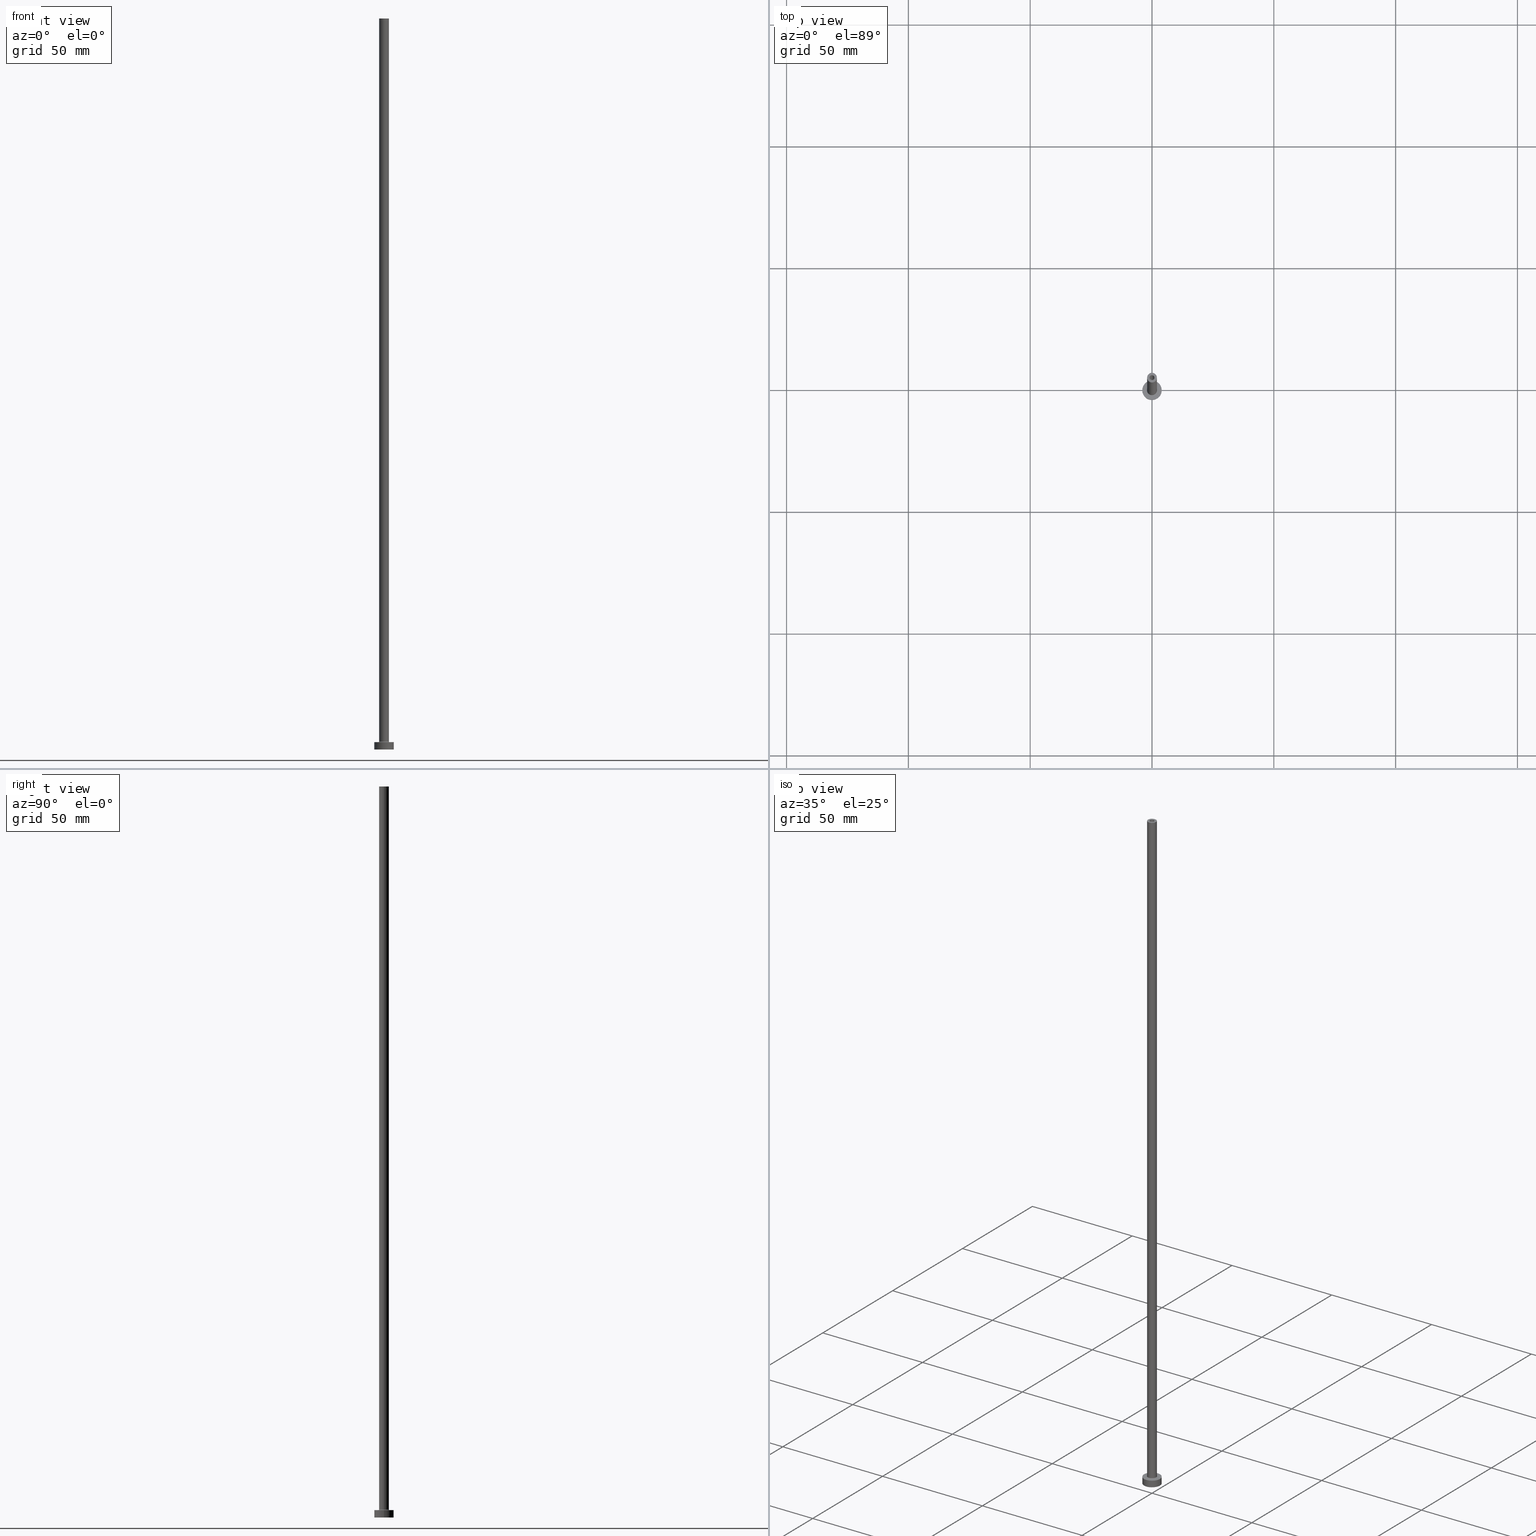
[diagram: canonical four-view strip — front | top / right | iso, engineering-drawing reading convention]
A machine part, canonical four-view strip (front | top / right | iso — engineering-drawing reading convention). The complete STEP part file that produces these views, byte-faithful:
ISO-10303-21;
HEADER;
FILE_DESCRIPTION (( 'STEP AP203' ),
    '1' );
FILE_NAME ('3793.STEP',
    '2023-02-13T18:16:34',
    ( '' ),
    ( '' ),
    'SwSTEP 2.0',
    'SolidWorks 2019',
    '' );
FILE_SCHEMA (( 'CONFIG_CONTROL_DESIGN' ));
ENDSEC;

DATA;
#1 = DIRECTION ( 'NONE',  ( 1.000000000000000000, 0.000000000000000000, -0.000000000000000000 ) ) ;
#2 = PRODUCT ( '3793', '3793', '', ( #319 ) ) ;
#3 = APPLICATION_PROTOCOL_DEFINITION ( 'international standard', 'config_control_design', 1994, #411 ) ;
#4 = CARTESIAN_POINT ( 'NONE',  ( -4.000000000000000000, 0.000000000000000000, 0.000000000000000000 ) ) ;
#5 = DIRECTION ( 'NONE',  ( 1.000000000000000000, 0.000000000000000000, 0.000000000000000000 ) ) ;
#6 = ORIENTED_EDGE ( 'NONE', *, *, #243, .T. ) ;
#7 = DATE_AND_TIME ( #323, #449 ) ;
#8 = CYLINDRICAL_SURFACE ( 'NONE', #114, 2.000000000000000000 ) ;
#9 = ADVANCED_FACE ( 'NONE', ( #197 ), #260, .F. ) ;
#10 = CARTESIAN_POINT ( 'NONE',  ( 1.149999999999999911, 1.408343819019456028E-16, 0.000000000000000000 ) ) ;
#11 = VERTEX_POINT ( 'NONE', #401 ) ;
#12 = DIRECTION ( 'NONE',  ( 0.000000000000000000, 0.000000000000000000, -1.000000000000000000 ) ) ;
#13 = ORIENTED_EDGE ( 'NONE', *, *, #121, .T. ) ;
#14 = APPROVAL ( #138, 'NEUR�EN�' ) ;
#15 = CARTESIAN_POINT ( 'NONE',  ( 0.000000000000000000, 0.000000000000000000, 3.000000000000000000 ) ) ;
#16 = FACE_OUTER_BOUND ( 'NONE', #297, .T. ) ;
#17 = AXIS2_PLACEMENT_3D ( 'NONE', #372, #445, #228 ) ;
#18 = ORIENTED_EDGE ( 'NONE', *, *, #376, .T. ) ;
#19 = CARTESIAN_POINT ( 'NONE',  ( -4.000000000000000000, 0.000000000000000000, 3.000000000000000000 ) ) ;
#20 = FACE_OUTER_BOUND ( 'NONE', #119, .T. ) ;
#21 = DIRECTION ( 'NONE',  ( 0.000000000000000000, 0.000000000000000000, 1.000000000000000000 ) ) ;
#22 = FACE_BOUND ( 'NONE', #328, .T. ) ;
#23 = DIRECTION ( 'NONE',  ( 0.000000000000000000, 0.000000000000000000, 1.000000000000000000 ) ) ;
#24 = AXIS2_PLACEMENT_3D ( 'NONE', #459, #347, #5 ) ;
#25 = CYLINDRICAL_SURFACE ( 'NONE', #17, 4.000000000000000000 ) ;
#26 = VERTEX_POINT ( 'NONE', #325 ) ;
#27 = VERTEX_POINT ( 'NONE', #10 ) ;
#28 = APPROVAL_ROLE ( '' ) ;
#29 = EDGE_CURVE ( 'NONE', #83, #434, #172, .T. ) ;
#30 = ORIENTED_EDGE ( 'NONE', *, *, #76, .T. ) ;
#31 = PRODUCT_DEFINITION_SHAPE ( 'NONE', 'NONE',  #175 ) ;
#32 = CIRCLE ( 'NONE', #86, 2.000000000000000000 ) ;
#33 = LOCAL_TIME ( 19, 16, 34.00000000000000000, #51 ) ;
#34 = DIRECTION ( 'NONE',  ( 0.000000000000000000, 0.000000000000000000, -1.000000000000000000 ) ) ;
#35 = CARTESIAN_POINT ( 'NONE',  ( 0.000000000000000000, 0.000000000000000000, 300.0000000000000000 ) ) ;
#36 = DIRECTION ( 'NONE',  ( 1.000000000000000000, 0.000000000000000000, 0.000000000000000000 ) ) ;
#37 = AXIS2_PLACEMENT_3D ( 'NONE', #285, #322, #426 ) ;
#38 = VERTEX_POINT ( 'NONE', #112 ) ;
#39 = PERSON_AND_ORGANIZATION_ROLE ( 'creator' ) ;
#40 = ORIENTED_EDGE ( 'NONE', *, *, #404, .T. ) ;
#41 = ADVANCED_FACE ( 'NONE', ( #16 ), #432, .T. ) ;
#42 = ORIENTED_EDGE ( 'NONE', *, *, #95, .T. ) ;
#43 = CARTESIAN_POINT ( 'NONE',  ( -2.000000000000000000, 0.000000000000000000, 3.300000000000025135 ) ) ;
#44 = ORIENTED_EDGE ( 'NONE', *, *, #345, .T. ) ;
#45 = ADVANCED_FACE ( 'NONE', ( #81 ), #48, .F. ) ;
#46 = ORIENTED_EDGE ( 'NONE', *, *, #124, .T. ) ;
#47 = VERTEX_POINT ( 'NONE', #185 ) ;
#48 = TOROIDAL_SURFACE ( 'NONE', #69, 2.299999999999999822, 0.2999999999999999889 ) ;
#49 = SECURITY_CLASSIFICATION ( '', '', #230 ) ;
#50 = ORIENTED_EDGE ( 'NONE', *, *, #232, .T. ) ;
#51 = COORDINATED_UNIVERSAL_TIME_OFFSET ( 1, 0, .AHEAD. ) ;
#52 = CC_DESIGN_DATE_AND_TIME_ASSIGNMENT ( #315, #137, ( #49 ) ) ;
#53 = COORDINATED_UNIVERSAL_TIME_OFFSET ( 1, 0, .AHEAD. ) ;
#54 = CARTESIAN_POINT ( 'NONE',  ( 0.000000000000000000, 0.000000000000000000, 3.000000000000000000 ) ) ;
#55 = DIRECTION ( 'NONE',  ( 1.000000000000000000, 0.000000000000000000, -0.000000000000000000 ) ) ;
#56 = ORIENTED_EDGE ( 'NONE', *, *, #420, .T. ) ;
#57 = ADVANCED_BREP_SHAPE_REPRESENTATION ( '3793', ( #393, #97 ), #335 ) ;
#58 = ORIENTED_EDGE ( 'NONE', *, *, #108, .T. ) ;
#59 = PERSON_AND_ORGANIZATION_ROLE ( 'design_supplier' ) ;
#60 = DIRECTION ( 'NONE',  ( 1.000000000000000000, 0.000000000000000000, 0.000000000000000000 ) ) ;
#61 = CC_DESIGN_DATE_AND_TIME_ASSIGNMENT ( #7, #140, ( #175 ) ) ;
#62 = ORIENTED_EDGE ( 'NONE', *, *, #431, .T. ) ;
#63 = AXIS2_PLACEMENT_3D ( 'NONE', #333, #410, #191 ) ;
#64 = PLANE ( 'NONE',  #122 ) ;
#65 = EDGE_CURVE ( 'NONE', #47, #267, #179, .T. ) ;
#66 = DIRECTION ( 'NONE',  ( 0.000000000000000000, 0.000000000000000000, 1.000000000000000000 ) ) ;
#67 = COORDINATED_UNIVERSAL_TIME_OFFSET ( 1, 0, .AHEAD. ) ;
#68 = DIRECTION ( 'NONE',  ( 0.000000000000000000, 0.000000000000000000, 1.000000000000000000 ) ) ;
#69 = AXIS2_PLACEMENT_3D ( 'NONE', #151, #68, #351 ) ;
#70 = DIRECTION ( 'NONE',  ( 1.000000000000000000, 0.000000000000000000, -0.000000000000000000 ) ) ;
#71 = DIRECTION ( 'NONE',  ( -0.000000000000000000, -0.000000000000000000, -1.000000000000000000 ) ) ;
#72 = ADVANCED_FACE ( 'NONE', ( #443 ), #252, .F. ) ;
#73 = CARTESIAN_POINT ( 'NONE',  ( -1.149999999999999911, 0.000000000000000000, 265.0000000000000000 ) ) ;
#74 = ORIENTED_EDGE ( 'NONE', *, *, #376, .F. ) ;
#75 = DIRECTION ( 'NONE',  ( -1.000000000000000000, 0.000000000000000000, 0.000000000000000000 ) ) ;
#76 = EDGE_CURVE ( 'NONE', #292, #396, #289, .T. ) ;
#77 = CIRCLE ( 'NONE', #109, 2.000000000000000000 ) ;
#78 = EDGE_LOOP ( 'NONE', ( #418, #40 ) ) ;
#79 = EDGE_LOOP ( 'NONE', ( #186, #18, #392, #178 ) ) ;
#80 = CARTESIAN_POINT ( 'NONE',  ( -1.000000000000000000, 0.000000000000000000, 265.0000000000000000 ) ) ;
#81 = FACE_OUTER_BOUND ( 'NONE', #117, .T. ) ;
#82 =( NAMED_UNIT ( * ) SI_UNIT ( $, .STERADIAN. ) SOLID_ANGLE_UNIT ( ) );
#83 = VERTEX_POINT ( 'NONE', #43 ) ;
#84 = ORIENTED_EDGE ( 'NONE', *, *, #243, .F. ) ;
#85 = CYLINDRICAL_SURFACE ( 'NONE', #352, 1.000000000000000000 ) ;
#86 = AXIS2_PLACEMENT_3D ( 'NONE', #266, #224, #220 ) ;
#87 = ORIENTED_EDGE ( 'NONE', *, *, #155, .F. ) ;
#88 = EDGE_CURVE ( 'NONE', #396, #384, #368, .T. ) ;
#89 = PLANE ( 'NONE',  #226 ) ;
#90 = ORIENTED_EDGE ( 'NONE', *, *, #337, .F. ) ;
#91 = CARTESIAN_POINT ( 'NONE',  ( 0.000000000000000000, 0.000000000000000000, 0.000000000000000000 ) ) ;
#92 = DIRECTION ( 'NONE',  ( -0.000000000000000000, -0.000000000000000000, -1.000000000000000000 ) ) ;
#93 = DIRECTION ( 'NONE',  ( 1.000000000000000000, 0.000000000000000000, 0.000000000000000000 ) ) ;
#94 = ORIENTED_EDGE ( 'NONE', *, *, #29, .T. ) ;
#95 = EDGE_CURVE ( 'NONE', #384, #396, #427, .T. ) ;
#96 = CIRCLE ( 'NONE', #262, 2.299999999999999822 ) ;
#97 = AXIS2_PLACEMENT_3D ( 'NONE', #144, #270, #135 ) ;
#98 = EDGE_LOOP ( 'NONE', ( #439, #153 ) ) ;
#99 = CARTESIAN_POINT ( 'NONE',  ( 0.000000000000000000, 0.000000000000000000, 3.000000000000000000 ) ) ;
#100 = CARTESIAN_POINT ( 'NONE',  ( 0.000000000000000000, 0.000000000000000000, 268.2526911934581904 ) ) ;
#101 = DIRECTION ( 'NONE',  ( 0.000000000000000000, 0.000000000000000000, 1.000000000000000000 ) ) ;
#102 = DESIGN_CONTEXT ( 'detailed design', #411, 'design' ) ;
#103 = APPLICATION_PROTOCOL_DEFINITION ( 'international standard', 'config_control_design', 1994, #192 ) ;
#104 = EDGE_CURVE ( 'NONE', #47, #125, #217, .T. ) ;
#105 = PERSON_AND_ORGANIZATION ( #148, #438 ) ;
#106 = CARTESIAN_POINT ( 'NONE',  ( 2.299999999999999822, 0.000000000000000000, 3.000000000000012434 ) ) ;
#107 = PERSON_AND_ORGANIZATION ( #148, #438 ) ;
#108 = EDGE_CURVE ( 'NONE', #448, #27, #414, .T. ) ;
#109 = AXIS2_PLACEMENT_3D ( 'NONE', #382, #101, #93 ) ;
#110 = FACE_OUTER_BOUND ( 'NONE', #375, .T. ) ;
#111 = FACE_OUTER_BOUND ( 'NONE', #415, .T. ) ;
#112 = CARTESIAN_POINT ( 'NONE',  ( 4.000000000000000000, 4.898587196589412829E-16, 0.000000000000000000 ) ) ;
#113 = DIRECTION ( 'NONE',  ( 1.000000000000000000, 0.000000000000000000, 0.000000000000000000 ) ) ;
#114 = AXIS2_PLACEMENT_3D ( 'NONE', #233, #383, #196 ) ;
#115 = CC_DESIGN_SECURITY_CLASSIFICATION ( #49, ( #152 ) ) ;
#116 = ORIENTED_EDGE ( 'NONE', *, *, #431, .F. ) ;
#117 = EDGE_LOOP ( 'NONE', ( #231, #167, #209, #90 ) ) ;
#118 = APPROVAL_STATUS ( 'not_yet_approved' ) ;
#119 = EDGE_LOOP ( 'NONE', ( #180, #253, #46, #454 ) ) ;
#120 = DIRECTION ( 'NONE',  ( -0.000000000000000000, -0.000000000000000000, -1.000000000000000000 ) ) ;
#121 = EDGE_CURVE ( 'NONE', #11, #434, #314, .T. ) ;
#122 = AXIS2_PLACEMENT_3D ( 'NONE', #35, #66, #70 ) ;
#123 = CIRCLE ( 'NONE', #37, 1.149999999999999911 ) ;
#124 = EDGE_CURVE ( 'NONE', #38, #267, #342, .T. ) ;
#125 = VERTEX_POINT ( 'NONE', #385 ) ;
#126 = DIRECTION ( 'NONE',  ( 0.000000000000000000, 0.000000000000000000, 1.000000000000000000 ) ) ;
#127 = CIRCLE ( 'NONE', #437, 0.2999999999999999334 ) ;
#128 = DIRECTION ( 'NONE',  ( 1.000000000000000000, 0.000000000000000000, 0.000000000000000000 ) ) ;
#129 = APPROVAL_DATE_TIME ( #236, #276 ) ;
#130 = FACE_OUTER_BOUND ( 'NONE', #183, .T. ) ;
#131 = CC_DESIGN_PERSON_AND_ORGANIZATION_ASSIGNMENT ( #413, #374, ( #49 ) ) ;
#132 = CIRCLE ( 'NONE', #282, 0.2999999999999999334 ) ;
#133 = CC_DESIGN_APPROVAL ( #388, ( #152 ) ) ;
#134 = CARTESIAN_POINT ( 'NONE',  ( 0.000000000000000000, 0.000000000000000000, 300.0000000000000000 ) ) ;
#135 = DIRECTION ( 'NONE',  ( 1.000000000000000000, 0.000000000000000000, 0.000000000000000000 ) ) ;
#136 = ADVANCED_FACE ( 'NONE', ( #130 ), #280, .F. ) ;
#137 = DATE_TIME_ROLE ( 'classification_date' ) ;
#138 = APPROVAL_STATUS ( 'not_yet_approved' ) ;
#139 = CARTESIAN_POINT ( 'NONE',  ( -2.000000000000000000, 0.000000000000000000, 300.0000000000000000 ) ) ;
#140 = DATE_TIME_ROLE ( 'creation_date' ) ;
#141 = AXIS2_PLACEMENT_3D ( 'NONE', #99, #235, #128 ) ;
#142 = DIRECTION ( 'NONE',  ( 0.000000000000000000, 0.000000000000000000, -1.000000000000000000 ) ) ;
#143 = DIRECTION ( 'NONE',  ( 0.000000000000000000, 0.000000000000000000, 1.000000000000000000 ) ) ;
#144 = CARTESIAN_POINT ( 'NONE',  ( 0.000000000000000000, 0.000000000000000000, 0.000000000000000000 ) ) ;
#145 = DIRECTION ( 'NONE',  ( 1.000000000000000000, 0.000000000000000000, 0.000000000000000000 ) ) ;
#146 = ORIENTED_EDGE ( 'NONE', *, *, #256, .T. ) ;
#147 = CLOSED_SHELL ( 'NONE', ( #457, #9, #45, #205, #363, #41, #170, #321, #284, #216, #72, #136, #265, #355 ) ) ;
#148 = PERSON ( 'NEUR�EN�', 'NEUR�EN�', 'NEUR�EN�', ('NEUR�EN�'), ('NEUR�EN�'), ('NEUR�EN�') ) ;
#149 = ORIENTED_EDGE ( 'NONE', *, *, #121, .F. ) ;
#150 = DIRECTION ( 'NONE',  ( 1.000000000000000000, 0.000000000000000000, 0.000000000000000000 ) ) ;
#151 = CARTESIAN_POINT ( 'NONE',  ( 0.000000000000000000, 0.000000000000000000, 3.300000000000025135 ) ) ;
#152 = PRODUCT_DEFINITION_FORMATION_WITH_SPECIFIED_SOURCE ( 'LIBOVOLN�', '', #2, .NOT_KNOWN. ) ;
#153 = ORIENTED_EDGE ( 'NONE', *, *, #187, .F. ) ;
#154 = ORIENTED_EDGE ( 'NONE', *, *, #425, .F. ) ;
#155 = EDGE_CURVE ( 'NONE', #267, #38, #361, .T. ) ;
#156 = AXIS2_PLACEMENT_3D ( 'NONE', #398, #258, #75 ) ;
#157 = DIRECTION ( 'NONE',  ( 1.000000000000000000, 0.000000000000000000, 0.000000000000000000 ) ) ;
#158 = CIRCLE ( 'NONE', #329, 1.149999999999999911 ) ;
#159 = CALENDAR_DATE ( 2023, 13, 2 ) ;
#160 = CARTESIAN_POINT ( 'NONE',  ( 1.149999999999999911, 1.408343819019456028E-16, 268.2526911934581904 ) ) ;
#161 = LINE ( 'NONE', #453, #210 ) ;
#162 = ORIENTED_EDGE ( 'NONE', *, *, #155, .T. ) ;
#163 = DIRECTION ( 'NONE',  ( 0.000000000000000000, 0.000000000000000000, 1.000000000000000000 ) ) ;
#164 = AXIS2_PLACEMENT_3D ( 'NONE', #435, #277, #157 ) ;
#165 = CARTESIAN_POINT ( 'NONE',  ( 1.149999999999999911, 1.408343819019456028E-16, 265.0000000000000000 ) ) ;
#166 = CALENDAR_DATE ( 2023, 13, 2 ) ;
#167 = ORIENTED_EDGE ( 'NONE', *, *, #222, .T. ) ;
#168 = AXIS2_PLACEMENT_3D ( 'NONE', #100, #244, #387 ) ;
#169 = DIRECTION ( 'NONE',  ( -0.000000000000000000, -0.000000000000000000, -1.000000000000000000 ) ) ;
#170 = ADVANCED_FACE ( 'NONE', ( #22, #300 ), #89, .T. ) ;
#171 = FACE_OUTER_BOUND ( 'NONE', #381, .T. ) ;
#172 = CIRCLE ( 'NONE', #274, 2.000000000000000000 ) ;
#173 = CARTESIAN_POINT ( 'NONE',  ( 0.000000000000000000, 0.000000000000000000, 265.0000000000000000 ) ) ;
#174 =( LENGTH_UNIT ( ) NAMED_UNIT ( * ) SI_UNIT ( .MILLI., .METRE. ) );
#175 = PRODUCT_DEFINITION ( 'NEZN�M�', '', #152, #102 ) ;
#176 = CARTESIAN_POINT ( 'NONE',  ( 0.000000000000000000, 0.000000000000000000, 3.000000000000000000 ) ) ;
#177 = DIRECTION ( 'NONE',  ( 0.000000000000000000, 0.000000000000000000, -1.000000000000000000 ) ) ;
#178 = ORIENTED_EDGE ( 'NONE', *, *, #76, .F. ) ;
#179 = LINE ( 'NONE', #19, #421 ) ;
#180 = ORIENTED_EDGE ( 'NONE', *, *, #404, .F. ) ;
#181 = CARTESIAN_POINT ( 'NONE',  ( 0.000000000000000000, 0.000000000000000000, 3.300000000000025135 ) ) ;
#182 = APPROVAL_PERSON_ORGANIZATION ( #350, #14, #428 ) ;
#183 = EDGE_LOOP ( 'NONE', ( #436, #146, #365, #364 ) ) ;
#184 = DIRECTION ( 'NONE',  ( 0.000000000000000000, 0.000000000000000000, 1.000000000000000000 ) ) ;
#185 = CARTESIAN_POINT ( 'NONE',  ( -4.000000000000000000, 0.000000000000000000, 3.000000000000000000 ) ) ;
#186 = ORIENTED_EDGE ( 'NONE', *, *, #272, .T. ) ;
#187 = EDGE_CURVE ( 'NONE', #237, #292, #301, .T. ) ;
#188 = DIRECTION ( 'NONE',  ( 1.000000000000000000, 0.000000000000000000, 0.000000000000000000 ) ) ;
#189 = VERTEX_POINT ( 'NONE', #139 ) ;
#190 = DIRECTION ( 'NONE',  ( -1.000000000000000000, 0.000000000000000000, 0.000000000000000000 ) ) ;
#191 = DIRECTION ( 'NONE',  ( 1.000000000000000000, 0.000000000000000000, 0.000000000000000000 ) ) ;
#192 = APPLICATION_CONTEXT ( 'configuration controlled 3d designs of mechanical parts and assemblies' ) ;
#193 = DIRECTION ( 'NONE',  ( 0.000000000000000000, -1.000000000000000000, 0.000000000000000000 ) ) ;
#194 = CARTESIAN_POINT ( 'NONE',  ( 0.000000000000000000, 0.000000000000000000, 3.000000000000000000 ) ) ;
#195 = DIRECTION ( 'NONE',  ( 1.000000000000000000, 0.000000000000000000, 0.000000000000000000 ) ) ;
#196 = DIRECTION ( 'NONE',  ( -1.000000000000000000, 0.000000000000000000, 0.000000000000000000 ) ) ;
#197 = FACE_OUTER_BOUND ( 'NONE', #399, .T. ) ;
#198 = AXIS2_PLACEMENT_3D ( 'NONE', #194, #163, #195 ) ;
#199 = DIRECTION ( 'NONE',  ( -0.000000000000000000, -0.000000000000000000, -1.000000000000000000 ) ) ;
#200 = EDGE_CURVE ( 'NONE', #303, #27, #123, .T. ) ;
#201 = VERTEX_POINT ( 'NONE', #106 ) ;
#202 = CIRCLE ( 'NONE', #141, 4.000000000000000000 ) ;
#203 = DIRECTION ( 'NONE',  ( -0.000000000000000000, -0.000000000000000000, -1.000000000000000000 ) ) ;
#204 = LINE ( 'NONE', #419, #461 ) ;
#205 = ADVANCED_FACE ( 'NONE', ( #111 ), #250, .T. ) ;
#206 = CARTESIAN_POINT ( 'NONE',  ( -2.299999999999999822, 2.816687638038912056E-16, 3.300000000000025135 ) ) ;
#207 = AXIS2_PLACEMENT_3D ( 'NONE', #356, #177, #241 ) ;
#208 = FACE_OUTER_BOUND ( 'NONE', #405, .T. ) ;
#209 = ORIENTED_EDGE ( 'NONE', *, *, #326, .F. ) ;
#210 = VECTOR ( 'NONE', #264, 1000.000000000000000 ) ;
#211 = APPROVAL_PERSON_ORGANIZATION ( #287, #388, #304 ) ;
#212 = LINE ( 'NONE', #320, #377 ) ;
#213 = PLANE ( 'NONE',  #447 ) ;
#214 = COORDINATED_UNIVERSAL_TIME_OFFSET ( 1, 0, .AHEAD. ) ;
#215 = DIRECTION ( 'NONE',  ( 1.000000000000000000, 0.000000000000000000, 0.000000000000000000 ) ) ;
#216 = ADVANCED_FACE ( 'NONE', ( #422, #208 ), #64, .T. ) ;
#217 = CIRCLE ( 'NONE', #198, 4.000000000000000000 ) ;
#218 = CIRCLE ( 'NONE', #238, 1.149999999999999911 ) ;
#219 = DIRECTION ( 'NONE',  ( 1.000000000000000000, 0.000000000000000000, 0.000000000000000000 ) ) ;
#220 = DIRECTION ( 'NONE',  ( 1.000000000000000000, 0.000000000000000000, 0.000000000000000000 ) ) ;
#221 = DIRECTION ( 'NONE',  ( 1.000000000000000000, 0.000000000000000000, 0.000000000000000000 ) ) ;
#222 = EDGE_CURVE ( 'NONE', #83, #26, #132, .T. ) ;
#223 = CARTESIAN_POINT ( 'NONE',  ( 0.000000000000000000, 0.000000000000000000, 300.0000000000000000 ) ) ;
#224 = DIRECTION ( 'NONE',  ( 0.000000000000000000, 0.000000000000000000, 1.000000000000000000 ) ) ;
#225 = ORIENTED_EDGE ( 'NONE', *, *, #337, .T. ) ;
#226 = AXIS2_PLACEMENT_3D ( 'NONE', #54, #23, #1 ) ;
#227 = CARTESIAN_POINT ( 'NONE',  ( 1.000000000000000000, 1.224646799147353207E-16, 300.0000000000000000 ) ) ;
#228 = DIRECTION ( 'NONE',  ( -1.000000000000000000, 0.000000000000000000, 0.000000000000000000 ) ) ;
#229 = UNCERTAINTY_MEASURE_WITH_UNIT (LENGTH_MEASURE( 1.000000000000000082E-05 ), #174, 'distance_accuracy_value', 'NONE');
#230 = SECURITY_CLASSIFICATION_LEVEL ( 'unclassified' ) ;
#231 = ORIENTED_EDGE ( 'NONE', *, *, #29, .F. ) ;
#232 = EDGE_CURVE ( 'NONE', #189, #11, #32, .T. ) ;
#233 = CARTESIAN_POINT ( 'NONE',  ( 0.000000000000000000, 0.000000000000000000, 300.0000000000000000 ) ) ;
#234 = ORIENTED_EDGE ( 'NONE', *, *, #88, .T. ) ;
#235 = DIRECTION ( 'NONE',  ( 0.000000000000000000, 0.000000000000000000, 1.000000000000000000 ) ) ;
#236 = DATE_AND_TIME ( #166, #33 ) ;
#237 = VERTEX_POINT ( 'NONE', #227 ) ;
#238 = AXIS2_PLACEMENT_3D ( 'NONE', #334, #21, #188 ) ;
#239 = AXIS2_PLACEMENT_3D ( 'NONE', #344, #34, #281 ) ;
#240 = CARTESIAN_POINT ( 'NONE',  ( -2.000000000000000000, 0.000000000000000000, 300.0000000000000000 ) ) ;
#241 = DIRECTION ( 'NONE',  ( -1.000000000000000000, 0.000000000000000000, 0.000000000000000000 ) ) ;
#242 = DIRECTION ( 'NONE',  ( 1.000000000000000000, 0.000000000000000000, 0.000000000000000000 ) ) ;
#243 = EDGE_CURVE ( 'NONE', #434, #83, #389, .T. ) ;
#244 = DIRECTION ( 'NONE',  ( 0.000000000000000000, 0.000000000000000000, -1.000000000000000000 ) ) ;
#245 = AXIS2_PLACEMENT_3D ( 'NONE', #91, #442, #55 ) ;
#246 = DIRECTION ( 'NONE',  ( -0.000000000000000000, -0.000000000000000000, -1.000000000000000000 ) ) ;
#247 = EDGE_LOOP ( 'NONE', ( #367, #338 ) ) ;
#248 = CALENDAR_DATE ( 2023, 13, 2 ) ;
#249 = DIRECTION ( 'NONE',  ( 0.000000000000000000, 0.000000000000000000, 1.000000000000000000 ) ) ;
#250 = CYLINDRICAL_SURFACE ( 'NONE', #317, 2.000000000000000000 ) ;
#251 = ORIENTED_EDGE ( 'NONE', *, *, #291, .F. ) ;
#252 = TOROIDAL_SURFACE ( 'NONE', #259, 2.299999999999999822, 0.2999999999999999889 ) ;
#253 = ORIENTED_EDGE ( 'NONE', *, *, #425, .T. ) ;
#254 = FACE_BOUND ( 'NONE', #247, .T. ) ;
#255 = CARTESIAN_POINT ( 'NONE',  ( 0.000000000000000000, 0.000000000000000000, 300.0000000000000000 ) ) ;
#256 = EDGE_CURVE ( 'NONE', #448, #261, #158, .T. ) ;
#257 = FACE_OUTER_BOUND ( 'NONE', #332, .T. ) ;
#258 = DIRECTION ( 'NONE',  ( -0.000000000000000000, -0.000000000000000000, -1.000000000000000000 ) ) ;
#259 = AXIS2_PLACEMENT_3D ( 'NONE', #373, #184, #145 ) ;
#260 = CYLINDRICAL_SURFACE ( 'NONE', #207, 1.149999999999999911 ) ;
#261 = VERTEX_POINT ( 'NONE', #73 ) ;
#262 = AXIS2_PLACEMENT_3D ( 'NONE', #176, #71, #219 ) ;
#263 = AXIS2_PLACEMENT_3D ( 'NONE', #423, #169, #36 ) ;
#264 = DIRECTION ( 'NONE',  ( 0.000000000000000000, 0.000000000000000000, -1.000000000000000000 ) ) ;
#265 = ADVANCED_FACE ( 'NONE', ( #429, #171 ), #213, .F. ) ;
#266 = CARTESIAN_POINT ( 'NONE',  ( 0.000000000000000000, 0.000000000000000000, 300.0000000000000000 ) ) ;
#267 = VERTEX_POINT ( 'NONE', #4 ) ;
#268 = CARTESIAN_POINT ( 'NONE',  ( 2.299999999999999822, 0.000000000000000000, 3.300000000000025135 ) ) ;
#269 = ORIENTED_EDGE ( 'NONE', *, *, #232, .F. ) ;
#270 = DIRECTION ( 'NONE',  ( 0.000000000000000000, 0.000000000000000000, 1.000000000000000000 ) ) ;
#271 = PERSON_AND_ORGANIZATION_ROLE ( 'creator' ) ;
#272 = EDGE_CURVE ( 'NONE', #292, #237, #460, .T. ) ;
#273 = EDGE_LOOP ( 'NONE', ( #74, #327, #30, #308 ) ) ;
#274 = AXIS2_PLACEMENT_3D ( 'NONE', #181, #143, #221 ) ;
#275 = ORIENTED_EDGE ( 'NONE', *, *, #124, .F. ) ;
#276 = APPROVAL ( #118, 'NEUR�EN�' ) ;
#277 = DIRECTION ( 'NONE',  ( 0.000000000000000000, 0.000000000000000000, 1.000000000000000000 ) ) ;
#278 = FACE_OUTER_BOUND ( 'NONE', #79, .T. ) ;
#279 = DATE_AND_TIME ( #159, #343 ) ;
#280 = CYLINDRICAL_SURFACE ( 'NONE', #168, 1.149999999999999911 ) ;
#281 = DIRECTION ( 'NONE',  ( -1.000000000000000000, 0.000000000000000000, 0.000000000000000000 ) ) ;
#282 = AXIS2_PLACEMENT_3D ( 'NONE', #206, #354, #433 ) ;
#283 = APPROVAL_DATE_TIME ( #357, #14 ) ;
#284 = ADVANCED_FACE ( 'NONE', ( #110 ), #8, .T. ) ;
#285 = CARTESIAN_POINT ( 'NONE',  ( 0.000000000000000000, 0.000000000000000000, 0.000000000000000000 ) ) ;
#286 = AXIS2_PLACEMENT_3D ( 'NONE', #310, #126, #242 ) ;
#287 = PERSON_AND_ORGANIZATION ( #148, #438 ) ;
#288 = EDGE_LOOP ( 'NONE', ( #330, #84, #225, #251 ) ) ;
#289 = LINE ( 'NONE', #324, #309 ) ;
#290 = EDGE_LOOP ( 'NONE', ( #234, #42 ) ) ;
#291 = EDGE_CURVE ( 'NONE', #26, #201, #96, .T. ) ;
#292 = VERTEX_POINT ( 'NONE', #360 ) ;
#293 = ORIENTED_EDGE ( 'NONE', *, *, #345, .F. ) ;
#294 = AXIS2_PLACEMENT_3D ( 'NONE', #134, #249, #215 ) ;
#295 = LOCAL_TIME ( 19, 16, 34.00000000000000000, #214 ) ;
#296 = PERSON_AND_ORGANIZATION ( #148, #438 ) ;
#297 = EDGE_LOOP ( 'NONE', ( #154, #444, #370, #162 ) ) ;
#298 = PLANE ( 'NONE',  #245 ) ;
#299 = CC_DESIGN_PERSON_AND_ORGANIZATION_ASSIGNMENT ( #302, #271, ( #152 ) ) ;
#300 = FACE_OUTER_BOUND ( 'NONE', #78, .T. ) ;
#301 = CIRCLE ( 'NONE', #24, 1.000000000000000000 ) ;
#302 = PERSON_AND_ORGANIZATION ( #148, #438 ) ;
#303 = VERTEX_POINT ( 'NONE', #362 ) ;
#304 = APPROVAL_ROLE ( '' ) ;
#305 = DIRECTION ( 'NONE',  ( 0.000000000000000000, 0.000000000000000000, 1.000000000000000000 ) ) ;
#306 = LINE ( 'NONE', #240, #417 ) ;
#307 = EDGE_CURVE ( 'NONE', #261, #303, #212, .T. ) ;
#308 = ORIENTED_EDGE ( 'NONE', *, *, #95, .F. ) ;
#309 = VECTOR ( 'NONE', #142, 1000.000000000000000 ) ;
#310 = CARTESIAN_POINT ( 'NONE',  ( 0.000000000000000000, 0.000000000000000000, 0.000000000000000000 ) ) ;
#311 = ORIENTED_EDGE ( 'NONE', *, *, #326, .T. ) ;
#312 = CC_DESIGN_APPROVAL ( #276, ( #49 ) ) ;
#313 = APPROVAL_STATUS ( 'not_yet_approved' ) ;
#314 = LINE ( 'NONE', #339, #406 ) ;
#315 = DATE_AND_TIME ( #450, #407 ) ;
#316 = CARTESIAN_POINT ( 'NONE',  ( 2.000000000000000000, 2.449293598294706414E-16, 3.300000000000025135 ) ) ;
#317 = AXIS2_PLACEMENT_3D ( 'NONE', #255, #246, #359 ) ;
#318 = APPROVAL_PERSON_ORGANIZATION ( #296, #276, #28 ) ;
#319 = MECHANICAL_CONTEXT ( 'NONE', #192, 'mechanical' ) ;
#320 = CARTESIAN_POINT ( 'NONE',  ( -1.149999999999999911, 0.000000000000000000, 268.2526911934581904 ) ) ;
#321 = ADVANCED_FACE ( 'NONE', ( #254, #257 ), #298, .F. ) ;
#322 = DIRECTION ( 'NONE',  ( -0.000000000000000000, -0.000000000000000000, -1.000000000000000000 ) ) ;
#323 = CALENDAR_DATE ( 2023, 13, 2 ) ;
#324 = CARTESIAN_POINT ( 'NONE',  ( -1.000000000000000000, 0.000000000000000000, 300.0000000000000000 ) ) ;
#325 = CARTESIAN_POINT ( 'NONE',  ( -2.299999999999999822, 2.816687638038912056E-16, 3.000000000000012434 ) ) ;
#326 = EDGE_CURVE ( 'NONE', #201, #26, #424, .T. ) ;
#327 = ORIENTED_EDGE ( 'NONE', *, *, #187, .T. ) ;
#328 = EDGE_LOOP ( 'NONE', ( #311, #458 ) ) ;
#329 = AXIS2_PLACEMENT_3D ( 'NONE', #412, #394, #346 ) ;
#330 = ORIENTED_EDGE ( 'NONE', *, *, #222, .F. ) ;
#331 = CC_DESIGN_PERSON_AND_ORGANIZATION_ASSIGNMENT ( #107, #348, ( #2 ) ) ;
#332 = EDGE_LOOP ( 'NONE', ( #87, #275 ) ) ;
#333 = CARTESIAN_POINT ( 'NONE',  ( 0.000000000000000000, 0.000000000000000000, 0.000000000000000000 ) ) ;
#334 = CARTESIAN_POINT ( 'NONE',  ( 0.000000000000000000, 0.000000000000000000, 265.0000000000000000 ) ) ;
#335 =( GEOMETRIC_REPRESENTATION_CONTEXT ( 3 ) GLOBAL_UNCERTAINTY_ASSIGNED_CONTEXT ( ( #229 ) ) GLOBAL_UNIT_ASSIGNED_CONTEXT ( ( #174, #397, #82 ) ) REPRESENTATION_CONTEXT ( 'NONE', 'WORKASPACE' ) );
#336 = ORIENTED_EDGE ( 'NONE', *, *, #256, .F. ) ;
#337 = EDGE_CURVE ( 'NONE', #434, #201, #127, .T. ) ;
#338 = ORIENTED_EDGE ( 'NONE', *, *, #452, .F. ) ;
#339 = CARTESIAN_POINT ( 'NONE',  ( 2.000000000000000000, 2.449293598294706414E-16, 300.0000000000000000 ) ) ;
#340 = AXIS2_PLACEMENT_3D ( 'NONE', #451, #305, #60 ) ;
#341 = SHAPE_DEFINITION_REPRESENTATION ( #31, #57 ) ;
#342 = CIRCLE ( 'NONE', #286, 4.000000000000000000 ) ;
#343 = LOCAL_TIME ( 19, 16, 34.00000000000000000, #380 ) ;
#344 = CARTESIAN_POINT ( 'NONE',  ( 0.000000000000000000, 0.000000000000000000, 300.0000000000000000 ) ) ;
#345 = EDGE_CURVE ( 'NONE', #261, #448, #218, .T. ) ;
#346 = DIRECTION ( 'NONE',  ( 1.000000000000000000, 0.000000000000000000, 0.000000000000000000 ) ) ;
#347 = DIRECTION ( 'NONE',  ( 0.000000000000000000, 0.000000000000000000, 1.000000000000000000 ) ) ;
#348 = PERSON_AND_ORGANIZATION_ROLE ( 'design_owner' ) ;
#349 = DIRECTION ( 'NONE',  ( 0.000000000000000000, 0.000000000000000000, 1.000000000000000000 ) ) ;
#350 = PERSON_AND_ORGANIZATION ( #148, #438 ) ;
#351 = DIRECTION ( 'NONE',  ( 1.000000000000000000, 0.000000000000000000, 0.000000000000000000 ) ) ;
#352 = AXIS2_PLACEMENT_3D ( 'NONE', #223, #408, #190 ) ;
#353 = CC_DESIGN_APPROVAL ( #14, ( #175 ) ) ;
#354 = DIRECTION ( 'NONE',  ( 1.224646799147353207E-16, 1.000000000000000000, -0.000000000000000000 ) ) ;
#355 = ADVANCED_FACE ( 'NONE', ( #403 ), #85, .F. ) ;
#356 = CARTESIAN_POINT ( 'NONE',  ( 0.000000000000000000, 0.000000000000000000, 268.2526911934581904 ) ) ;
#357 = DATE_AND_TIME ( #248, #295 ) ;
#358 = ORIENTED_EDGE ( 'NONE', *, *, #307, .F. ) ;
#359 = DIRECTION ( 'NONE',  ( -1.000000000000000000, 0.000000000000000000, 0.000000000000000000 ) ) ;
#360 = CARTESIAN_POINT ( 'NONE',  ( -1.000000000000000000, 0.000000000000000000, 300.0000000000000000 ) ) ;
#361 = CIRCLE ( 'NONE', #63, 4.000000000000000000 ) ;
#362 = CARTESIAN_POINT ( 'NONE',  ( -1.149999999999999911, 0.000000000000000000, 0.000000000000000000 ) ) ;
#363 = ADVANCED_FACE ( 'NONE', ( #20 ), #25, .T. ) ;
#364 = ORIENTED_EDGE ( 'NONE', *, *, #200, .T. ) ;
#365 = ORIENTED_EDGE ( 'NONE', *, *, #307, .T. ) ;
#366 = DIRECTION ( 'NONE',  ( 0.000000000000000000, 0.000000000000000000, -1.000000000000000000 ) ) ;
#367 = ORIENTED_EDGE ( 'NONE', *, *, #200, .F. ) ;
#368 = CIRCLE ( 'NONE', #164, 1.000000000000000000 ) ;
#369 = CARTESIAN_POINT ( 'NONE',  ( 0.000000000000000000, 0.000000000000000000, 3.300000000000025135 ) ) ;
#370 = ORIENTED_EDGE ( 'NONE', *, *, #65, .T. ) ;
#371 = PRODUCT_RELATED_PRODUCT_CATEGORY ( 'detail', '', ( #2 ) ) ;
#372 = CARTESIAN_POINT ( 'NONE',  ( 0.000000000000000000, 0.000000000000000000, 3.000000000000000000 ) ) ;
#373 = CARTESIAN_POINT ( 'NONE',  ( 0.000000000000000000, 0.000000000000000000, 3.300000000000025135 ) ) ;
#374 = PERSON_AND_ORGANIZATION_ROLE ( 'classification_officer' ) ;
#375 = EDGE_LOOP ( 'NONE', ( #149, #269, #56, #94 ) ) ;
#376 = EDGE_CURVE ( 'NONE', #237, #384, #161, .T. ) ;
#377 = VECTOR ( 'NONE', #12, 1000.000000000000000 ) ;
#378 = CIRCLE ( 'NONE', #263, 1.149999999999999911 ) ;
#379 = ORIENTED_EDGE ( 'NONE', *, *, #420, .F. ) ;
#380 = COORDINATED_UNIVERSAL_TIME_OFFSET ( 1, 0, .AHEAD. ) ;
#381 = EDGE_LOOP ( 'NONE', ( #293, #336 ) ) ;
#382 = CARTESIAN_POINT ( 'NONE',  ( 0.000000000000000000, 0.000000000000000000, 300.0000000000000000 ) ) ;
#383 = DIRECTION ( 'NONE',  ( -0.000000000000000000, -0.000000000000000000, -1.000000000000000000 ) ) ;
#384 = VERTEX_POINT ( 'NONE', #400 ) ;
#385 = CARTESIAN_POINT ( 'NONE',  ( 4.000000000000000000, 4.898587196589412829E-16, 3.000000000000000000 ) ) ;
#386 = VECTOR ( 'NONE', #455, 1000.000000000000000 ) ;
#387 = DIRECTION ( 'NONE',  ( -1.000000000000000000, 0.000000000000000000, 0.000000000000000000 ) ) ;
#388 = APPROVAL ( #313, 'NEUR�EN�' ) ;
#389 = CIRCLE ( 'NONE', #395, 2.000000000000000000 ) ;
#390 = DIRECTION ( 'NONE',  ( 1.000000000000000000, 0.000000000000000000, -0.000000000000000000 ) ) ;
#391 = CC_DESIGN_PERSON_AND_ORGANIZATION_ASSIGNMENT ( #105, #39, ( #175 ) ) ;
#392 = ORIENTED_EDGE ( 'NONE', *, *, #88, .F. ) ;
#393 = MANIFOLD_SOLID_BREP ( 'Odebrat vysunut�m4', #147 ) ;
#394 = DIRECTION ( 'NONE',  ( 0.000000000000000000, 0.000000000000000000, 1.000000000000000000 ) ) ;
#395 = AXIS2_PLACEMENT_3D ( 'NONE', #369, #430, #113 ) ;
#396 = VERTEX_POINT ( 'NONE', #80 ) ;
#397 =( NAMED_UNIT ( * ) PLANE_ANGLE_UNIT ( ) SI_UNIT ( $, .RADIAN. ) );
#398 = CARTESIAN_POINT ( 'NONE',  ( 0.000000000000000000, 0.000000000000000000, 3.000000000000000000 ) ) ;
#399 = EDGE_LOOP ( 'NONE', ( #44, #58, #402, #358 ) ) ;
#400 = CARTESIAN_POINT ( 'NONE',  ( 1.000000000000000000, 1.224646799147353207E-16, 265.0000000000000000 ) ) ;
#401 = CARTESIAN_POINT ( 'NONE',  ( 2.000000000000000000, 2.449293598294706414E-16, 300.0000000000000000 ) ) ;
#402 = ORIENTED_EDGE ( 'NONE', *, *, #452, .T. ) ;
#403 = FACE_OUTER_BOUND ( 'NONE', #273, .T. ) ;
#404 = EDGE_CURVE ( 'NONE', #125, #47, #202, .T. ) ;
#405 = EDGE_LOOP ( 'NONE', ( #50, #62 ) ) ;
#406 = VECTOR ( 'NONE', #92, 1000.000000000000000 ) ;
#407 = LOCAL_TIME ( 19, 16, 34.00000000000000000, #53 ) ;
#408 = DIRECTION ( 'NONE',  ( 0.000000000000000000, 0.000000000000000000, -1.000000000000000000 ) ) ;
#409 = PERSON_AND_ORGANIZATION ( #148, #438 ) ;
#410 = DIRECTION ( 'NONE',  ( 0.000000000000000000, 0.000000000000000000, 1.000000000000000000 ) ) ;
#411 = APPLICATION_CONTEXT ( 'configuration controlled 3d designs of mechanical parts and assemblies' ) ;
#412 = CARTESIAN_POINT ( 'NONE',  ( 0.000000000000000000, 0.000000000000000000, 265.0000000000000000 ) ) ;
#413 = PERSON_AND_ORGANIZATION ( #148, #438 ) ;
#414 = LINE ( 'NONE', #160, #386 ) ;
#415 = EDGE_LOOP ( 'NONE', ( #116, #13, #6, #379 ) ) ;
#416 = AXIS2_PLACEMENT_3D ( 'NONE', #15, #120, #150 ) ;
#417 = VECTOR ( 'NONE', #199, 1000.000000000000000 ) ;
#418 = ORIENTED_EDGE ( 'NONE', *, *, #104, .T. ) ;
#419 = CARTESIAN_POINT ( 'NONE',  ( 4.000000000000000000, 4.898587196589412829E-16, 3.000000000000000000 ) ) ;
#420 = EDGE_CURVE ( 'NONE', #189, #83, #306, .T. ) ;
#421 = VECTOR ( 'NONE', #441, 1000.000000000000000 ) ;
#422 = FACE_BOUND ( 'NONE', #98, .T. ) ;
#423 = CARTESIAN_POINT ( 'NONE',  ( 0.000000000000000000, 0.000000000000000000, 0.000000000000000000 ) ) ;
#424 = CIRCLE ( 'NONE', #416, 2.299999999999999822 ) ;
#425 = EDGE_CURVE ( 'NONE', #125, #38, #204, .T. ) ;
#426 = DIRECTION ( 'NONE',  ( 1.000000000000000000, 0.000000000000000000, 0.000000000000000000 ) ) ;
#427 = CIRCLE ( 'NONE', #340, 1.000000000000000000 ) ;
#428 = APPROVAL_ROLE ( '' ) ;
#429 = FACE_BOUND ( 'NONE', #290, .T. ) ;
#430 = DIRECTION ( 'NONE',  ( 0.000000000000000000, 0.000000000000000000, 1.000000000000000000 ) ) ;
#431 = EDGE_CURVE ( 'NONE', #11, #189, #77, .T. ) ;
#432 = CYLINDRICAL_SURFACE ( 'NONE', #156, 4.000000000000000000 ) ;
#433 = DIRECTION ( 'NONE',  ( -1.000000000000000000, 1.224646799147353207E-16, 0.000000000000000000 ) ) ;
#434 = VERTEX_POINT ( 'NONE', #316 ) ;
#435 = CARTESIAN_POINT ( 'NONE',  ( 0.000000000000000000, 0.000000000000000000, 265.0000000000000000 ) ) ;
#436 = ORIENTED_EDGE ( 'NONE', *, *, #108, .F. ) ;
#437 = AXIS2_PLACEMENT_3D ( 'NONE', #268, #193, #366 ) ;
#438 = ORGANIZATION ( 'NEUR�EN�', 'NEUR�EN�', '' ) ;
#439 = ORIENTED_EDGE ( 'NONE', *, *, #272, .F. ) ;
#440 = CC_DESIGN_PERSON_AND_ORGANIZATION_ASSIGNMENT ( #409, #59, ( #152 ) ) ;
#441 = DIRECTION ( 'NONE',  ( -0.000000000000000000, -0.000000000000000000, -1.000000000000000000 ) ) ;
#442 = DIRECTION ( 'NONE',  ( 0.000000000000000000, 0.000000000000000000, 1.000000000000000000 ) ) ;
#443 = FACE_OUTER_BOUND ( 'NONE', #288, .T. ) ;
#444 = ORIENTED_EDGE ( 'NONE', *, *, #104, .F. ) ;
#445 = DIRECTION ( 'NONE',  ( -0.000000000000000000, -0.000000000000000000, -1.000000000000000000 ) ) ;
#446 = APPROVAL_DATE_TIME ( #279, #388 ) ;
#447 = AXIS2_PLACEMENT_3D ( 'NONE', #173, #349, #390 ) ;
#448 = VERTEX_POINT ( 'NONE', #165 ) ;
#449 = LOCAL_TIME ( 19, 16, 34.00000000000000000, #67 ) ;
#450 = CALENDAR_DATE ( 2023, 13, 2 ) ;
#451 = CARTESIAN_POINT ( 'NONE',  ( 0.000000000000000000, 0.000000000000000000, 265.0000000000000000 ) ) ;
#452 = EDGE_CURVE ( 'NONE', #27, #303, #378, .T. ) ;
#453 = CARTESIAN_POINT ( 'NONE',  ( 1.000000000000000000, 1.224646799147353207E-16, 300.0000000000000000 ) ) ;
#454 = ORIENTED_EDGE ( 'NONE', *, *, #65, .F. ) ;
#455 = DIRECTION ( 'NONE',  ( 0.000000000000000000, 0.000000000000000000, -1.000000000000000000 ) ) ;
#456 = CYLINDRICAL_SURFACE ( 'NONE', #239, 1.000000000000000000 ) ;
#457 = ADVANCED_FACE ( 'NONE', ( #278 ), #456, .F. ) ;
#458 = ORIENTED_EDGE ( 'NONE', *, *, #291, .T. ) ;
#459 = CARTESIAN_POINT ( 'NONE',  ( 0.000000000000000000, 0.000000000000000000, 300.0000000000000000 ) ) ;
#460 = CIRCLE ( 'NONE', #294, 1.000000000000000000 ) ;
#461 = VECTOR ( 'NONE', #203, 1000.000000000000000 ) ;
ENDSEC;
END-ISO-10303-21;
